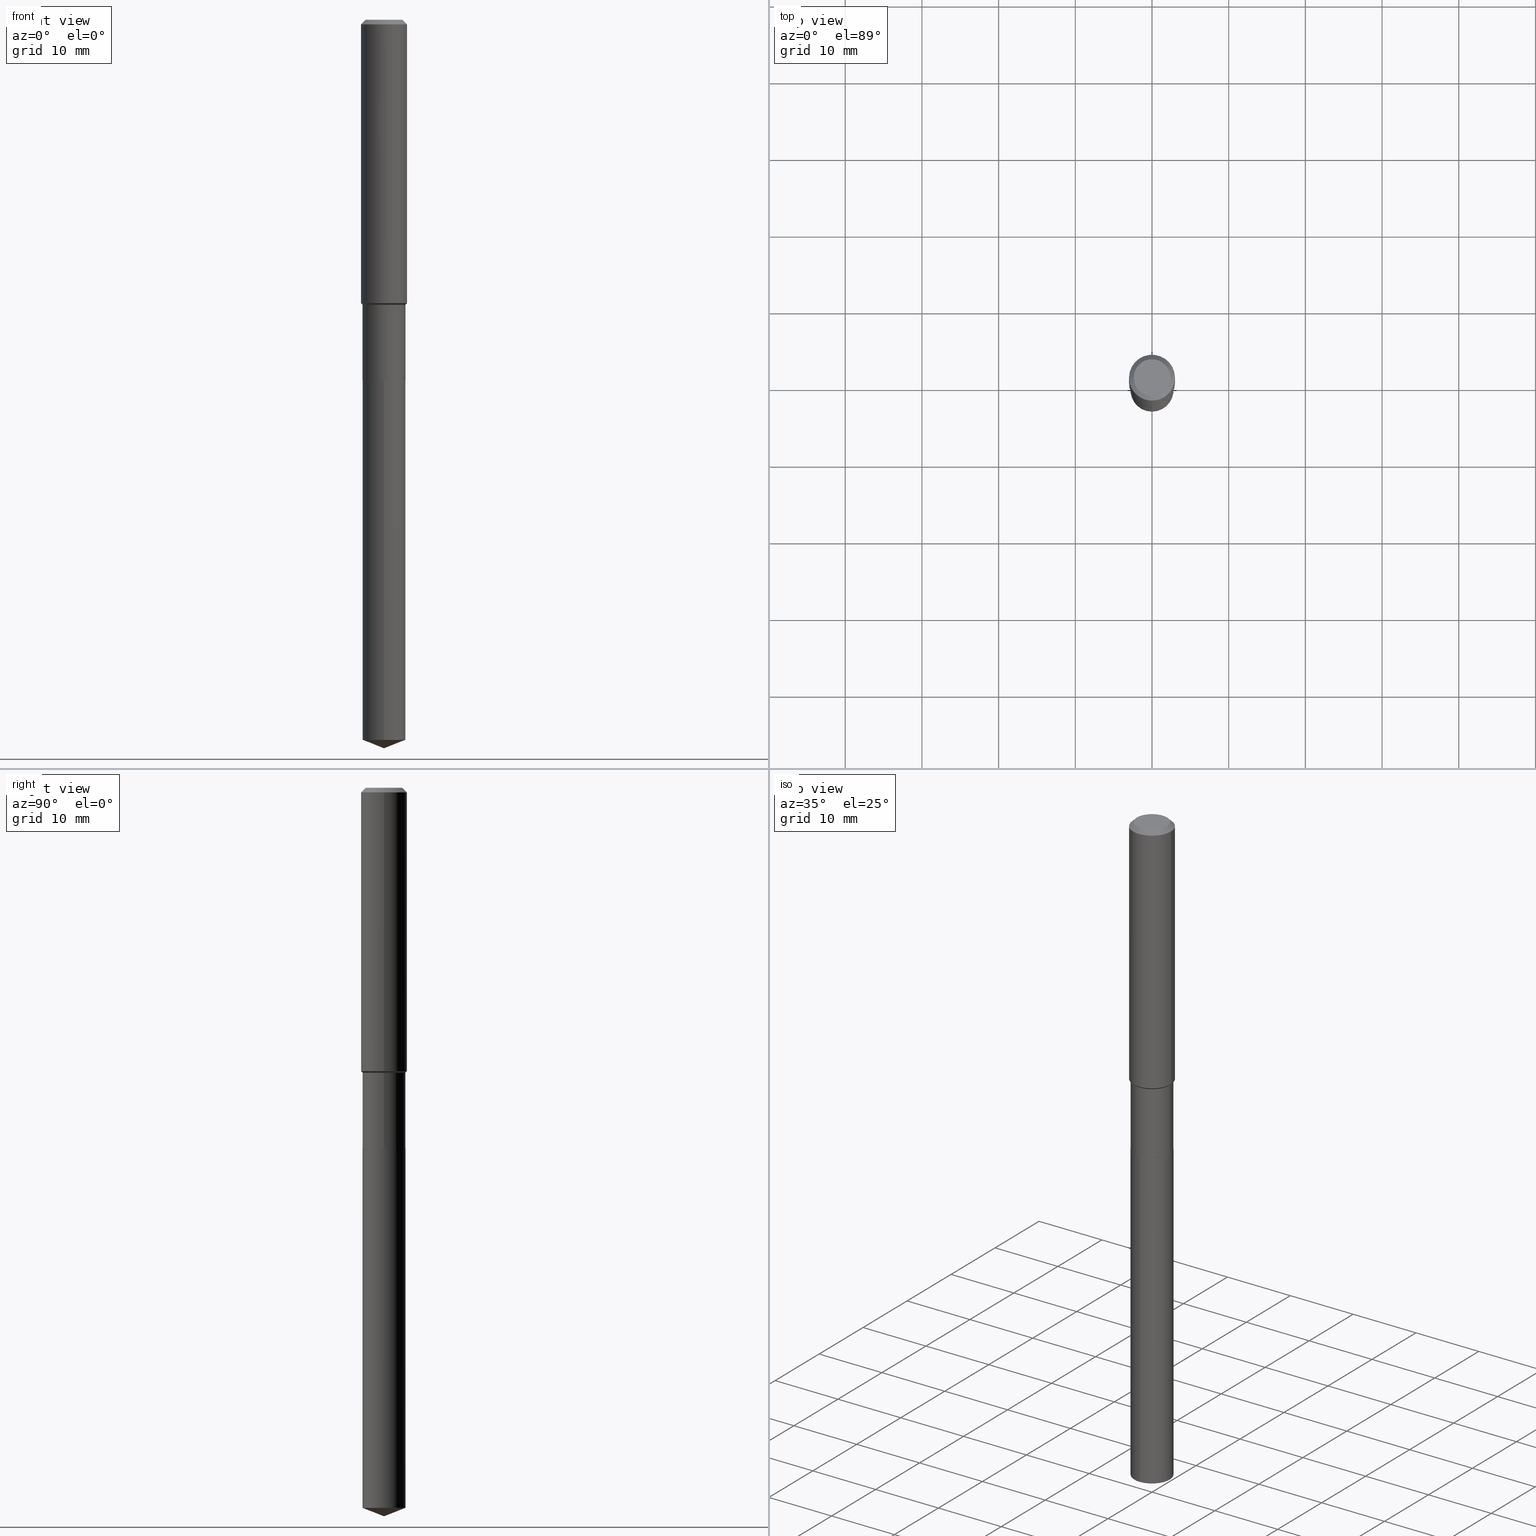
[diagram: canonical four-view strip — front | top / right | iso, engineering-drawing reading convention]
A machine part, canonical four-view strip (front | top / right | iso — engineering-drawing reading convention). The complete STEP part file that produces these views, byte-faithful:
ISO-10303-21;
HEADER;
FILE_DESCRIPTION (( 'STEP AP203' ),
    '1' );
FILE_NAME ('66632.STEP',
    '2024-04-25T02:28:00',
    ( '' ),
    ( '' ),
    'SwSTEP 2.0',
    'SolidWorks 2023',
    '' );
FILE_SCHEMA (( 'CONFIG_CONTROL_DESIGN' ));
ENDSEC;

DATA;
#1 = LINE ( 'NONE', #305, #469 ) ;
#2 = FACE_OUTER_BOUND ( 'NONE', #66, .T. ) ;
#3 = FACE_OUTER_BOUND ( 'NONE', #328, .T. ) ;
#4 = CIRCLE ( 'NONE', #447, 0.1097500000000000003 ) ;
#5 = CARTESIAN_POINT ( 'NONE',  ( 0.1102499999999999730, -7.698716352149106840E-16, 5.375984895315018203E-30 ) ) ;
#6 = AXIS2_PLACEMENT_3D ( 'NONE', #230, #418, #342 ) ;
#7 = DIRECTION ( 'NONE',  ( -2.445468806185136597E-29, 3.491481338843145583E-15, 1.000000000000000000 ) ) ;
#8 = LINE ( 'NONE', #461, #316 ) ;
#9 = CARTESIAN_POINT ( 'NONE',  ( 0.1097500000000000003, -7.227017223271426830E-15, -1.850400000000000489 ) ) ;
#10 = CARTESIAN_POINT ( 'NONE',  ( 4.523872744561885153E-29, -6.458891328725936072E-15, -1.849900000000000322 ) ) ;
#11 = CARTESIAN_POINT ( 'NONE',  ( 0.1181000000000001632, -5.905316962452350864E-15, -1.455149999999999721 ) ) ;
#12 = DIRECTION ( 'NONE',  ( 2.445468806185136597E-29, -3.491481338843145583E-15, -1.000000000000000000 ) ) ;
#13 = ORGANIZATION ( 'UNSPECIFIED', 'UNSPECIFIED', '' ) ;
#14 = CC_DESIGN_APPROVAL ( #440, ( #465 ) ) ;
#15 = EDGE_CURVE ( 'NONE', #366, #479, #346, .T. ) ;
#16 =( CONVERSION_BASED_UNIT ( 'INCH', #245 ) LENGTH_UNIT ( ) NAMED_UNIT ( #398 ) );
#17 = PERSON_AND_ORGANIZATION ( #439, #13 ) ;
#18 = CC_DESIGN_APPROVAL ( #399, ( #164 ) ) ;
#19 = DATE_AND_TIME ( #358, #356 ) ;
#20 = PRODUCT_DEFINITION_SHAPE ( 'NONE', 'NONE',  #164 ) ;
#21 = ORIENTED_EDGE ( 'NONE', *, *, #173, .T. ) ;
#22 = AXIS2_PLACEMENT_3D ( 'NONE', #26, #111, #171 ) ;
#23 = PERSON_AND_ORGANIZATION ( #439, #13 ) ;
#24 = AXIS2_PLACEMENT_3D ( 'NONE', #213, #62, #218 ) ;
#25 = EDGE_CURVE ( 'NONE', #175, #282, #267, .T. ) ;
#26 = CARTESIAN_POINT ( 'NONE',  ( 0.000000000000000000, 0.000000000000000000, 0.000000000000000000 ) ) ;
#27 = ORIENTED_EDGE ( 'NONE', *, *, #425, .F. ) ;
#28 = DIRECTION ( 'NONE',  ( -6.982962677686266711E-15, -1.000000000000000000, 2.477866660919966807E-15 ) ) ;
#29 = CC_DESIGN_PERSON_AND_ORGANIZATION_ASSIGNMENT ( #125, #272, ( #465 ) ) ;
#30 = CARTESIAN_POINT ( 'NONE',  ( -0.1180999999999999966, -1.742397958787859255E-15, -0.02362000000000014088 ) ) ;
#31 = VERTEX_POINT ( 'NONE', #120 ) ;
#32 = DIRECTION ( 'NONE',  ( -1.000000000000000000, 6.982962677686265922E-15, -4.876176775795935793E-29 ) ) ;
#33 = ORIENTED_EDGE ( 'NONE', *, *, #79, .T. ) ;
#34 = ADVANCED_BREP_SHAPE_REPRESENTATION ( '66632', ( #162, #326, #291 ), #478 ) ;
#35 = CIRCLE ( 'NONE', #487, 0.1102500000000000008 ) ;
#36 = APPROVAL_PERSON_ORGANIZATION ( #17, #440, #49 ) ;
#37 = CARTESIAN_POINT ( 'NONE',  ( -0.09447999999999998066, 7.009847083995354710E-16, -1.928573779297727792E-17 ) ) ;
#38 = ORIENTED_EDGE ( 'NONE', *, *, #263, .T. ) ;
#39 = CARTESIAN_POINT ( 'NONE',  ( 9.146586312602250272E-29, -1.305877565957271148E-14, -3.740200000000000191 ) ) ;
#40 = LINE ( 'NONE', #9, #195 ) ;
#41 = DIRECTION ( 'NONE',  ( -2.445480539169629745E-29, 3.491464536541551464E-15, 1.000000000000000000 ) ) ;
#42 = CARTESIAN_POINT ( 'NONE',  ( 4.716267017698007905E-46, -6.733579360998555036E-32, -1.928573779297252010E-17 ) ) ;
#43 = VECTOR ( 'NONE', #460, 39.37007874015748854 ) ;
#44 = FACE_OUTER_BOUND ( 'NONE', #219, .T. ) ;
#45 = CARTESIAN_POINT ( 'NONE',  ( 0.000000000000000000, 0.000000000000000000, 0.000000000000000000 ) ) ;
#46 = DIRECTION ( 'NONE',  ( 1.000000000000000000, -6.982962677686262766E-15, 0.000000000000000000 ) ) ;
#47 = DIRECTION ( 'NONE',  ( -2.445468806185136597E-29, 3.491481338843145583E-15, 1.000000000000000000 ) ) ;
#48 = CARTESIAN_POINT ( 'NONE',  ( -0.1180999999999999966, 7.422191030112725094E-16, -0.02362000000000014088 ) ) ;
#49 = APPROVAL_ROLE ( '' ) ;
#50 = CARTESIAN_POINT ( 'NONE',  ( 9.040360732535120479E-29, -1.290717722925754200E-14, -3.696771370063453688 ) ) ;
#51 = CIRCLE ( 'NONE', #279, 0.1097500000000000003 ) ;
#52 = LOCAL_TIME ( 22, 28, 0.000000000000000000, #392 ) ;
#53 = LOCAL_TIME ( 22, 28, 0.000000000000000000, #387 ) ;
#54 = APPROVAL_DATE_TIME ( #470, #440 ) ;
#55 = ORIENTED_EDGE ( 'NONE', *, *, #395, .F. ) ;
#56 = CC_DESIGN_PERSON_AND_ORGANIZATION_ASSIGNMENT ( #242, #91, ( #164 ) ) ;
#57 = AXIS2_PLACEMENT_3D ( 'NONE', #77, #463, #421 ) ;
#58 = ORIENTED_EDGE ( 'NONE', *, *, #311, .T. ) ;
#59 = CC_DESIGN_APPROVAL ( #64, ( #82 ) ) ;
#60 = ORIENTED_EDGE ( 'NONE', *, *, #431, .F. ) ;
#61 = DATE_AND_TIME ( #131, #233 ) ;
#62 = DIRECTION ( 'NONE',  ( -2.445468806185136597E-29, 3.491481338843145583E-15, 1.000000000000000000 ) ) ;
#63 = ORIENTED_EDGE ( 'NONE', *, *, #147, .T. ) ;
#64 = APPROVAL ( #320, 'UNSPECIFIED' ) ;
#65 = DIRECTION ( 'NONE',  ( -2.445468806185136597E-29, 3.491481338843145583E-15, 1.000000000000000000 ) ) ;
#66 = EDGE_LOOP ( 'NONE', ( #199, #244 ) ) ;
#67 = DIRECTION ( 'NONE',  ( 1.000000000000000000, 0.000000000000000000, 0.000000000000000000 ) ) ;
#68 = CARTESIAN_POINT ( 'NONE',  ( 2.358133508849003952E-46, -3.366789680499277518E-32, -9.642868896486260050E-18 ) ) ;
#69 = ORIENTED_EDGE ( 'NONE', *, *, #234, .T. ) ;
#70 = EDGE_CURVE ( 'NONE', #142, #479, #177, .T. ) ;
#71 = FACE_OUTER_BOUND ( 'NONE', #394, .T. ) ;
#72 = ORIENTED_EDGE ( 'NONE', *, *, #311, .F. ) ;
#73 = AXIS2_PLACEMENT_3D ( 'NONE', #451, #414, #293 ) ;
#74 = AXIS2_PLACEMENT_3D ( 'NONE', #416, #80, #46 ) ;
#75 = DIRECTION ( 'NONE',  ( -2.445468806185136877E-29, 3.491481338843145188E-15, 1.000000000000000000 ) ) ;
#76 = CARTESIAN_POINT ( 'NONE',  ( 5.776197320209327532E-31, -8.246878922347559293E-17, -0.02362000000000014088 ) ) ;
#77 = CARTESIAN_POINT ( 'NONE',  ( -8.713219678274335127E-28, 1.244004269715567405E-13, 35.62987874015747991 ) ) ;
#78 = DIRECTION ( 'NONE',  ( 0.7071067811864267805, -2.468850131080992517E-15, 0.7071067811866682540 ) ) ;
#79 = EDGE_CURVE ( 'NONE', #31, #292, #299, .T. ) ;
#80 = DIRECTION ( 'NONE',  ( -2.445468806185136597E-29, 3.491481338843145583E-15, 1.000000000000000000 ) ) ;
#81 = DIRECTION ( 'NONE',  ( -2.445468806185136597E-29, 3.491481338843145583E-15, 1.000000000000000000 ) ) ;
#82 = PRODUCT_DEFINITION_FORMATION_WITH_SPECIFIED_SOURCE ( 'ANY', '', #95, .NOT_KNOWN. ) ;
#83 = DIRECTION ( 'NONE',  ( -6.982962677686266711E-15, -1.000000000000000000, 2.477866660919966807E-15 ) ) ;
#84 = DIRECTION ( 'NONE',  ( -6.497071151882131669E-15, -0.9304175679820261280, 0.3665012267242931387 ) ) ;
#85 = DIRECTION ( 'NONE',  ( -2.445468806185136597E-29, 3.491481338843145583E-15, 1.000000000000000000 ) ) ;
#86 = DIRECTION ( 'NONE',  ( 2.445480539169629464E-29, -3.491464536541551464E-15, -1.000000000000000000 ) ) ;
#87 = ORIENTED_EDGE ( 'NONE', *, *, #238, .F. ) ;
#88 = APPROVAL_STATUS ( 'not_yet_approved' ) ;
#89 = AXIS2_PLACEMENT_3D ( 'NONE', #384, #378, #303 ) ;
#90 = EDGE_LOOP ( 'NONE', ( #485, #369 ) ) ;
#91 = PERSON_AND_ORGANIZATION_ROLE ( 'creator' ) ;
#92 = CC_DESIGN_PERSON_AND_ORGANIZATION_ASSIGNMENT ( #97, #236, ( #95 ) ) ;
#93 = EDGE_LOOP ( 'NONE', ( #468, #200, #168, #211 ) ) ;
#94 = VECTOR ( 'NONE', #222, 39.37007874015748143 ) ;
#95 = PRODUCT ( '66632', '66632', '', ( #160 ) ) ;
#96 = ORIENTED_EDGE ( 'NONE', *, *, #173, .F. ) ;
#97 = PERSON_AND_ORGANIZATION ( #439, #13 ) ;
#98 = LINE ( 'NONE', #253, #472 ) ;
#99 = ORIENTED_EDGE ( 'NONE', *, *, #133, .F. ) ;
#100 = DIRECTION ( 'NONE',  ( -2.445468806185136597E-29, 3.491481338843145583E-15, 1.000000000000000000 ) ) ;
#101 = ADVANCED_FACE ( 'NONE', ( #221 ), #298, .T. ) ;
#102 = CIRCLE ( 'NONE', #210, 0.1102500000000000008 ) ;
#103 = ORIENTED_EDGE ( 'NONE', *, *, #263, .F. ) ;
#104 = CIRCLE ( 'NONE', #422, 0.09447999999999998066 ) ;
#105 = VECTOR ( 'NONE', #149, 39.37007874015748143 ) ;
#106 = CARTESIAN_POINT ( 'NONE',  ( 0.1180999999999999966, -9.071566814582237199E-16, -0.02362000000000014088 ) ) ;
#107 = VERTEX_POINT ( 'NONE', #192 ) ;
#108 = EDGE_CURVE ( 'NONE', #107, #205, #40, .T. ) ;
#109 = CARTESIAN_POINT ( 'NONE',  ( 0.1102500000000000008, -7.228762963940847545E-15, -1.849900000000000322 ) ) ;
#110 = ORIENTED_EDGE ( 'NONE', *, *, #340, .F. ) ;
#111 = DIRECTION ( 'NONE',  ( -2.445468806185136597E-29, 3.491481338843145583E-15, 1.000000000000000000 ) ) ;
#112 = CARTESIAN_POINT ( 'NONE',  ( 9.146542891173238393E-29, -1.305883784153045268E-14, -3.740200000000000191 ) ) ;
#113 = EDGE_CURVE ( 'NONE', #254, #207, #128, .T. ) ;
#114 = FACE_OUTER_BOUND ( 'NONE', #400, .T. ) ;
#115 = CARTESIAN_POINT ( 'NONE',  ( 4.525095478964977954E-29, -6.460637069395358365E-15, -1.850400000000000489 ) ) ;
#116 = CARTESIAN_POINT ( 'NONE',  ( 4.525095478964977394E-29, -6.460637069395357576E-15, -1.850400000000000267 ) ) ;
#117 = DIRECTION ( 'NONE',  ( -2.445480539169630025E-29, 3.491464536541551464E-15, 1.000000000000000000 ) ) ;
#118 = PRODUCT_RELATED_PRODUCT_CATEGORY ( 'detail', '', ( #95 ) ) ;
#119 = DIRECTION ( 'NONE',  ( -2.445468806185136877E-29, 3.491481338843145188E-15, 1.000000000000000000 ) ) ;
#120 = CARTESIAN_POINT ( 'NONE',  ( 7.833733661756007850E-16, 0.1102499999999870806, -3.696771370063454132 ) ) ;
#121 = APPROVAL_STATUS ( 'not_yet_approved' ) ;
#122 = PLANE ( 'NONE',  #6 ) ;
#123 = DIRECTION ( 'NONE',  ( -2.445468806185136597E-29, 3.491481338843145583E-15, 1.000000000000000000 ) ) ;
#124 = PERSON_AND_ORGANIZATION_ROLE ( 'creator' ) ;
#125 = PERSON_AND_ORGANIZATION ( #439, #13 ) ;
#126 = ORIENTED_EDGE ( 'NONE', *, *, #318, .T. ) ;
#127 = ORIENTED_EDGE ( 'NONE', *, *, #133, .T. ) ;
#128 = CIRCLE ( 'NONE', #413, 0.09447999999999998066 ) ;
#129 = VECTOR ( 'NONE', #336, 39.37007874015748143 ) ;
#130 = ORIENTED_EDGE ( 'NONE', *, *, #113, .F. ) ;
#131 = CALENDAR_DATE ( 2024, 24, 4 ) ;
#132 = EDGE_LOOP ( 'NONE', ( #286, #232, #237, #103 ) ) ;
#133 = EDGE_CURVE ( 'NONE', #294, #31, #348, .T. ) ;
#134 = LINE ( 'NONE', #255, #380 ) ;
#135 = APPLICATION_PROTOCOL_DEFINITION ( 'international standard', 'config_control_design', 1994, #313 ) ;
#136 = CARTESIAN_POINT ( 'NONE',  ( -8.713219678274335127E-28, 1.244004269715567405E-13, 35.62987874015747991 ) ) ;
#137 = EDGE_CURVE ( 'NONE', #31, #217, #102, .T. ) ;
#138 = DESIGN_CONTEXT ( 'detailed design', #202, 'design' ) ;
#139 = ORIENTED_EDGE ( 'NONE', *, *, #395, .T. ) ;
#140 = AXIS2_PLACEMENT_3D ( 'NONE', #467, #325, #28 ) ;
#141 = CARTESIAN_POINT ( 'NONE',  ( -0.1102499999999999869, -5.000090897551218961E-15, -1.849900000000000322 ) ) ;
#142 = VERTEX_POINT ( 'NONE', #11 ) ;
#143 = DIRECTION ( 'NONE',  ( 2.438088387897960049E-29, -3.491481338843145188E-15, -1.000000000000000000 ) ) ;
#144 = DIRECTION ( 'NONE',  ( 1.000000000000000000, -6.982962677686267499E-15, 4.875432709231658792E-29 ) ) ;
#145 = DIRECTION ( 'NONE',  ( -2.445480539169629745E-29, 3.491464536541551464E-15, 1.000000000000000000 ) ) ;
#146 = DIRECTION ( 'NONE',  ( 0.7071067811865459074, -7.319954787623249734E-15, -0.7071067811865491270 ) ) ;
#147 = EDGE_CURVE ( 'NONE', #294, #217, #423, .T. ) ;
#148 = AXIS2_PLACEMENT_3D ( 'NONE', #329, #243, #295 ) ;
#149 = DIRECTION ( 'NONE',  ( -0.7071067811865459074, 2.468850131082240100E-15, -0.7071067811865491270 ) ) ;
#150 = CC_DESIGN_DATE_AND_TIME_ASSIGNMENT ( #434, #270, ( #465 ) ) ;
#151 = DIRECTION ( 'NONE',  ( -2.445468806185136597E-29, 3.491481338843145583E-15, 1.000000000000000000 ) ) ;
#152 = EDGE_CURVE ( 'NONE', #296, #107, #4, .T. ) ;
#153 = FACE_OUTER_BOUND ( 'NONE', #406, .T. ) ;
#154 = DIRECTION ( 'NONE',  ( -2.445480539169629745E-29, 3.491464536541551464E-15, 1.000000000000000000 ) ) ;
#155 = DIRECTION ( 'NONE',  ( -2.445468806185136597E-29, 3.491481338843145583E-15, 1.000000000000000000 ) ) ;
#156 = ADVANCED_FACE ( 'NONE', ( #3 ), #257, .T. ) ;
#157 = AXIS2_PLACEMENT_3D ( 'NONE', #269, #304, #353 ) ;
#158 = CARTESIAN_POINT ( 'NONE',  ( -7.698716352148656203E-16, -0.1102500000000064539, -1.850400000000000045 ) ) ;
#159 = EDGE_CURVE ( 'NONE', #254, #282, #1, .T. ) ;
#160 = MECHANICAL_CONTEXT ( 'NONE', #313, 'mechanical' ) ;
#161 = UNCERTAINTY_MEASURE_WITH_UNIT (LENGTH_MEASURE( 1.000000000000000082E-05 ), #16, 'distance_accuracy_value', 'NONE');
#162 = MANIFOLD_SOLID_BREP ( 'Body-Move/Copy2[1]', #486 ) ;
#163 = AXIS2_PLACEMENT_3D ( 'NONE', #45, #7, #264 ) ;
#164 = PRODUCT_DEFINITION ( 'UNKNOWN', '', #82, #138 ) ;
#165 = ORIENTED_EDGE ( 'NONE', *, *, #25, .T. ) ;
#166 = DATE_TIME_ROLE ( 'creation_date' ) ;
#167 = AXIS2_PLACEMENT_3D ( 'NONE', #350, #12, #383 ) ;
#168 = ORIENTED_EDGE ( 'NONE', *, *, #407, .F. ) ;
#169 = ADVANCED_FACE ( 'NONE', ( #185 ), #343, .T. ) ;
#170 = APPROVAL_ROLE ( '' ) ;
#171 = DIRECTION ( 'NONE',  ( 1.000000000000000000, -6.982962677686266711E-15, 4.876176775795935793E-29 ) ) ;
#172 = ORIENTED_EDGE ( 'NONE', *, *, #385, .F. ) ;
#173 = EDGE_CURVE ( 'NONE', #107, #296, #51, .T. ) ;
#174 = FACE_OUTER_BOUND ( 'NONE', #435, .T. ) ;
#175 = VERTEX_POINT ( 'NONE', #30 ) ;
#176 = CARTESIAN_POINT ( 'NONE',  ( 5.776197320209327532E-31, -8.246878922347559293E-17, -0.02362000000000014088 ) ) ;
#177 = CIRCLE ( 'NONE', #89, 0.1181000000000001632 ) ;
#178 = ORIENTED_EDGE ( 'NONE', *, *, #420, .T. ) ;
#179 = CIRCLE ( 'NONE', #277, 0.1102500000000000008 ) ;
#180 = PLANE ( 'NONE',  #322 ) ;
#181 = VERTEX_POINT ( 'NONE', #141 ) ;
#182 = CARTESIAN_POINT ( 'NONE',  ( -0.1097500000000000003, -5.678167189724537898E-15, -1.850400000000000489 ) ) ;
#183 = DIRECTION ( 'NONE',  ( -0.7071067811865435759, 7.493145998870339961E-15, 0.7071067811865513475 ) ) ;
#184 = DIRECTION ( 'NONE',  ( -2.445480539169629745E-29, 3.491464536541551464E-15, 1.000000000000000000 ) ) ;
#185 = FACE_OUTER_BOUND ( 'NONE', #93, .T. ) ;
#186 = AXIS2_PLACEMENT_3D ( 'NONE', #338, #100, #290 ) ;
#187 = AXIS2_PLACEMENT_3D ( 'NONE', #116, #86, #262 ) ;
#188 = CARTESIAN_POINT ( 'NONE',  ( 4.716267017698007905E-46, -6.733579360998555036E-32, -1.928573779297252010E-17 ) ) ;
#189 = DIRECTION ( 'NONE',  ( 1.000000000000000000, -6.982962677686266711E-15, 4.876176775795936353E-29 ) ) ;
#190 = ADVANCED_FACE ( 'NONE', ( #174 ), #240, .T. ) ;
#191 = CARTESIAN_POINT ( 'NONE',  ( -0.1102499999999999591, -5.000090897551218961E-15, -1.462999999999999856 ) ) ;
#192 = CARTESIAN_POINT ( 'NONE',  ( 0.1097500000000000003, -7.227017223271426830E-15, -1.850400000000000489 ) ) ;
#193 = FACE_OUTER_BOUND ( 'NONE', #90, .T. ) ;
#194 = SHAPE_DEFINITION_REPRESENTATION ( #20, #34 ) ;
#195 = VECTOR ( 'NONE', #78, 39.37007874015748143 ) ;
#196 = CONICAL_SURFACE ( 'NONE', #57, 99.94676754584121170, 1.195550537616123732 ) ;
#197 = DIRECTION ( 'NONE',  ( -6.982962677686266711E-15, -1.000000000000000000, 4.955733321839933614E-15 ) ) ;
#198 = EDGE_CURVE ( 'NONE', #479, #142, #276, .T. ) ;
#199 = ORIENTED_EDGE ( 'NONE', *, *, #431, .T. ) ;
#200 = ORIENTED_EDGE ( 'NONE', *, *, #238, .T. ) ;
#201 = ORIENTED_EDGE ( 'NONE', *, *, #137, .F. ) ;
#202 = APPLICATION_CONTEXT ( 'configuration controlled 3d designs of mechanical parts and assemblies' ) ;
#203 = CIRCLE ( 'NONE', #344, 0.1102500000000000008 ) ;
#204 = VERTEX_POINT ( 'NONE', #444 ) ;
#205 = VERTEX_POINT ( 'NONE', #109 ) ;
#206 = COORDINATED_UNIVERSAL_TIME_OFFSET ( 5, 0, .BEHIND. ) ;
#207 = VERTEX_POINT ( 'NONE', #37 ) ;
#208 = APPROVAL_ROLE ( '' ) ;
#209 = DIRECTION ( 'NONE',  ( -6.982962677686266711E-15, -1.000000000000000000, 3.498627837349960835E-15 ) ) ;
#210 = AXIS2_PLACEMENT_3D ( 'NONE', #458, #154, #266 ) ;
#211 = ORIENTED_EDGE ( 'NONE', *, *, #432, .F. ) ;
#212 = ADVANCED_FACE ( 'NONE', ( #2 ), #180, .F. ) ;
#213 = CARTESIAN_POINT ( 'NONE',  ( 4.525095478964977954E-29, -6.460637069395358365E-15, -1.850400000000000489 ) ) ;
#214 = ORIENTED_EDGE ( 'NONE', *, *, #393, .F. ) ;
#215 =( LENGTH_UNIT ( ) NAMED_UNIT ( * ) SI_UNIT ( $, .METRE. ) );
#216 = FACE_OUTER_BOUND ( 'NONE', #410, .T. ) ;
#217 = VERTEX_POINT ( 'NONE', #371 ) ;
#218 = DIRECTION ( 'NONE',  ( 1.000000000000000000, -6.982962677686264344E-15, 0.000000000000000000 ) ) ;
#219 = EDGE_LOOP ( 'NONE', ( #96, #489 ) ) ;
#220 = CARTESIAN_POINT ( 'NONE',  ( 4.523872744561885153E-29, -6.458891328725936072E-15, -1.849900000000000322 ) ) ;
#221 = FACE_OUTER_BOUND ( 'NONE', #132, .T. ) ;
#222 = DIRECTION ( 'NONE',  ( -2.445480539169630025E-29, 3.491464536541551464E-15, 1.000000000000000000 ) ) ;
#223 = CARTESIAN_POINT ( 'NONE',  ( 0.000000000000000000, 0.000000000000000000, 0.000000000000000000 ) ) ;
#224 = LINE ( 'NONE', #48, #105 ) ;
#225 = DIRECTION ( 'NONE',  ( 1.000000000000000000, -6.982962677686264344E-15, 0.000000000000000000 ) ) ;
#226 = DIRECTION ( 'NONE',  ( 1.000000000000000000, -6.982962677686266711E-15, 4.876176775795935793E-29 ) ) ;
#227 = DIRECTION ( 'NONE',  ( 1.000000000000000000, -6.982962677686264344E-15, 0.000000000000000000 ) ) ;
#228 = CARTESIAN_POINT ( 'NONE',  ( -0.1181000000000001632, -4.241478099284922826E-15, -1.455149999999999721 ) ) ;
#229 = PERSON_AND_ORGANIZATION_ROLE ( 'design_supplier' ) ;
#230 = CARTESIAN_POINT ( 'NONE',  ( 1.308789617312019754E-29, -1.106657012404351745E-14, -1.850400000000000489 ) ) ;
#231 = ADVANCED_FACE ( 'NONE', ( #216 ), #368, .T. ) ;
#232 = ORIENTED_EDGE ( 'NONE', *, *, #152, .T. ) ;
#233 = LOCAL_TIME ( 22, 28, 0.000000000000000000, #477 ) ;
#234 = EDGE_CURVE ( 'NONE', #366, #204, #390, .T. ) ;
#235 = CALENDAR_DATE ( 2024, 24, 4 ) ;
#236 = PERSON_AND_ORGANIZATION_ROLE ( 'design_owner' ) ;
#237 = ORIENTED_EDGE ( 'NONE', *, *, #108, .T. ) ;
#238 = EDGE_CURVE ( 'NONE', #479, #175, #134, .T. ) ;
#239 = ADVANCED_FACE ( 'NONE', ( #331 ), #404, .T. ) ;
#240 = CONICAL_SURFACE ( 'NONE', #361, 0.1180999999999999966, 0.7853981633974460586 ) ;
#241 = ORIENTED_EDGE ( 'NONE', *, *, #425, .T. ) ;
#242 = PERSON_AND_ORGANIZATION ( #439, #13 ) ;
#243 = DIRECTION ( 'NONE',  ( -2.445480539169629745E-29, 3.491464536541551464E-15, 1.000000000000000000 ) ) ;
#244 = ORIENTED_EDGE ( 'NONE', *, *, #113, .T. ) ;
#245 = LENGTH_MEASURE_WITH_UNIT ( LENGTH_MEASURE( 0.02539999999999999897 ), #215 );
#246 = VECTOR ( 'NONE', #183, 39.37007874015748854 ) ;
#247 = CARTESIAN_POINT ( 'NONE',  ( -0.1097500000000000003, -5.680816416898649099E-15, -1.850400000000000489 ) ) ;
#248 = CIRCLE ( 'NONE', #157, 0.1180999999999999966 ) ;
#249 = ORIENTED_EDGE ( 'NONE', *, *, #159, .T. ) ;
#250 = DIRECTION ( 'NONE',  ( 0.000000000000000000, 0.000000000000000000, 1.000000000000000000 ) ) ;
#251 = LINE ( 'NONE', #362, #129 ) ;
#252 = EDGE_LOOP ( 'NONE', ( #359, #69, #450, #441 ) ) ;
#253 = CARTESIAN_POINT ( 'NONE',  ( 0.1102499999999999591, -5.877908833942432075E-15, -1.462999999999999856 ) ) ;
#254 = VERTEX_POINT ( 'NONE', #409 ) ;
#255 = CARTESIAN_POINT ( 'NONE',  ( -0.1181000000000000799, 8.391509709326788873E-16, -5.809262341591047988E-30 ) ) ;
#256 = AXIS2_PLACEMENT_3D ( 'NONE', #115, #339, #376 ) ;
#257 = CYLINDRICAL_SURFACE ( 'NONE', #476, 0.1181000000000000799 ) ;
#258 = CONICAL_SURFACE ( 'NONE', #24, 0.1097500000000000003, 0.7853981633972775267 ) ;
#259 = ADVANCED_FACE ( 'NONE', ( #449 ), #405, .T. ) ;
#260 = CARTESIAN_POINT ( 'NONE',  ( -7.698716352148656203E-16, -0.1102500000000064539, -1.850400000000000045 ) ) ;
#261 = CARTESIAN_POINT ( 'NONE',  ( 9.146586693356927948E-29, -1.305877565957271148E-14, -3.740200000000000191 ) ) ;
#262 = DIRECTION ( 'NONE',  ( 6.982962677686265922E-15, 1.000000000000000000, -3.491464536541551464E-15 ) ) ;
#263 = EDGE_CURVE ( 'NONE', #181, #205, #179, .T. ) ;
#264 = DIRECTION ( 'NONE',  ( 1.000000000000000000, -6.982962677686266711E-15, 4.876176775795936353E-29 ) ) ;
#265 = FACE_OUTER_BOUND ( 'NONE', #482, .T. ) ;
#266 = DIRECTION ( 'NONE',  ( -6.982962677686266711E-15, -1.000000000000000000, 4.955733321839933614E-15 ) ) ;
#267 = CIRCLE ( 'NONE', #403, 0.1180999999999999966 ) ;
#268 = VECTOR ( 'NONE', #297, 39.37007874015748143 ) ;
#269 = CARTESIAN_POINT ( 'NONE',  ( 5.776197320209327532E-31, -8.246878922347559293E-17, -0.02362000000000014088 ) ) ;
#270 = DATE_TIME_ROLE ( 'classification_date' ) ;
#271 = DIRECTION ( 'NONE',  ( -2.445468806185136597E-29, 3.491481338843145583E-15, 1.000000000000000000 ) ) ;
#272 = PERSON_AND_ORGANIZATION_ROLE ( 'classification_officer' ) ;
#273 = ORIENTED_EDGE ( 'NONE', *, *, #340, .T. ) ;
#274 = CYLINDRICAL_SURFACE ( 'NONE', #140, 0.1102500000000000008 ) ;
#275 = ORIENTED_EDGE ( 'NONE', *, *, #432, .T. ) ;
#276 = CIRCLE ( 'NONE', #73, 0.1181000000000001632 ) ;
#277 = AXIS2_PLACEMENT_3D ( 'NONE', #220, #374, #285 ) ;
#278 = ORIENTED_EDGE ( 'NONE', *, *, #420, .F. ) ;
#279 = AXIS2_PLACEMENT_3D ( 'NONE', #419, #81, #225 ) ;
#280 = APPROVAL_PERSON_ORGANIZATION ( #283, #399, #170 ) ;
#281 = CC_DESIGN_SECURITY_CLASSIFICATION ( #465, ( #82 ) ) ;
#282 = VERTEX_POINT ( 'NONE', #106 ) ;
#283 = PERSON_AND_ORGANIZATION ( #439, #13 ) ;
#284 = EDGE_CURVE ( 'NONE', #204, #142, #98, .T. ) ;
#285 = DIRECTION ( 'NONE',  ( 1.000000000000000000, -6.982962677686269077E-15, 0.000000000000000000 ) ) ;
#286 = ORIENTED_EDGE ( 'NONE', *, *, #318, .F. ) ;
#287 = CARTESIAN_POINT ( 'NONE',  ( 3.577720863448854962E-29, -5.108037198727522179E-15, -1.462999999999999856 ) ) ;
#288 = ORIENTED_EDGE ( 'NONE', *, *, #393, .T. ) ;
#289 =( NAMED_UNIT ( * ) PLANE_ANGLE_UNIT ( ) SI_UNIT ( $, .RADIAN. ) );
#290 = DIRECTION ( 'NONE',  ( 1.000000000000000000, -6.982962677686262766E-15, 0.000000000000000000 ) ) ;
#291 = AXIS2_PLACEMENT_3D ( 'NONE', #446, #250, #67 ) ;
#292 = VERTEX_POINT ( 'NONE', #411 ) ;
#293 = DIRECTION ( 'NONE',  ( 1.000000000000000000, -6.982962677686263555E-15, 0.000000000000000000 ) ) ;
#294 = VERTEX_POINT ( 'NONE', #39 ) ;
#295 = DIRECTION ( 'NONE',  ( -6.982962677686266711E-15, -1.000000000000000000, 2.477866660919966807E-15 ) ) ;
#296 = VERTEX_POINT ( 'NONE', #182 ) ;
#297 = DIRECTION ( 'NONE',  ( -2.445468806185136877E-29, 3.491481338843145188E-15, 1.000000000000000000 ) ) ;
#298 = CONICAL_SURFACE ( 'NONE', #256, 0.1097500000000000003, 0.7853981633972775267 ) ;
#299 = LINE ( 'NONE', #462, #351 ) ;
#300 = VECTOR ( 'NONE', #327, 39.37007874015748143 ) ;
#301 = ADVANCED_FACE ( 'NONE', ( #71 ), #258, .T. ) ;
#302 = FACE_OUTER_BOUND ( 'NONE', #355, .T. ) ;
#303 = DIRECTION ( 'NONE',  ( 1.000000000000000000, -6.982962677686263555E-15, 0.000000000000000000 ) ) ;
#304 = DIRECTION ( 'NONE',  ( -2.445468806185136597E-29, 3.491481338843145583E-15, 1.000000000000000000 ) ) ;
#305 = CARTESIAN_POINT ( 'NONE',  ( 0.1180999999999999966, -8.926936027602933910E-16, -0.02362000000000014088 ) ) ;
#306 = DIRECTION ( 'NONE',  ( 1.000000000000000000, -6.982962677686262766E-15, 0.000000000000000000 ) ) ;
#307 = CIRCLE ( 'NONE', #333, 0.1102500000000000008 ) ;
#308 = LOCAL_TIME ( 22, 28, 0.000000000000000000, #424 ) ;
#309 = CYLINDRICAL_SURFACE ( 'NONE', #448, 0.1102499999999999730 ) ;
#310 = EDGE_LOOP ( 'NONE', ( #139, #33, #402, #214 ) ) ;
#311 = EDGE_CURVE ( 'NONE', #181, #366, #251, .T. ) ;
#312 = CALENDAR_DATE ( 2024, 24, 4 ) ;
#313 = APPLICATION_CONTEXT ( 'configuration controlled 3d designs of mechanical parts and assemblies' ) ;
#314 = PERSON_AND_ORGANIZATION ( #439, #13 ) ;
#315 = ORIENTED_EDGE ( 'NONE', *, *, #137, .T. ) ;
#316 = VECTOR ( 'NONE', #119, 39.37007874015748143 ) ;
#317 = CIRCLE ( 'NONE', #464, 0.1102500000000000008 ) ;
#318 = EDGE_CURVE ( 'NONE', #296, #181, #490, .T. ) ;
#319 = ORIENTED_EDGE ( 'NONE', *, *, #332, .F. ) ;
#320 = APPROVAL_STATUS ( 'not_yet_approved' ) ;
#321 = ADVANCED_FACE ( 'NONE', ( #481 ), #391, .T. ) ;
#322 = AXIS2_PLACEMENT_3D ( 'NONE', #68, #143, #32 ) ;
#323 = APPROVAL_PERSON_ORGANIZATION ( #401, #64, #208 ) ;
#324 = ORIENTED_EDGE ( 'NONE', *, *, #108, .F. ) ;
#325 = DIRECTION ( 'NONE',  ( -2.445480539169629745E-29, 3.491464536541551464E-15, 1.000000000000000000 ) ) ;
#326 = MANIFOLD_SOLID_BREP ( 'Body-Move/Copy2[2]', #370 ) ;
#327 = DIRECTION ( 'NONE',  ( -0.7071067811864267805, 7.493145998869918709E-15, 0.7071067811866682540 ) ) ;
#328 = EDGE_LOOP ( 'NONE', ( #87, #429, #275, #373 ) ) ;
#329 = CARTESIAN_POINT ( 'NONE',  ( 4.525095478964977394E-29, -6.460637069395357576E-15, -1.850400000000000267 ) ) ;
#330 = ORIENTED_EDGE ( 'NONE', *, *, #15, .T. ) ;
#331 = FACE_OUTER_BOUND ( 'NONE', #443, .T. ) ;
#332 = EDGE_CURVE ( 'NONE', #204, #366, #457, .T. ) ;
#333 = AXIS2_PLACEMENT_3D ( 'NONE', #459, #41, #388 ) ;
#334 = VERTEX_POINT ( 'NONE', #158 ) ;
#335 = CC_DESIGN_PERSON_AND_ORGANIZATION_ASSIGNMENT ( #23, #124, ( #82 ) ) ;
#336 = DIRECTION ( 'NONE',  ( -2.445468806185136877E-29, 3.491481338843145188E-15, 1.000000000000000000 ) ) ;
#337 = CARTESIAN_POINT ( 'NONE',  ( 4.525095478964977954E-29, -6.460637069395358365E-15, -1.850400000000000489 ) ) ;
#338 = CARTESIAN_POINT ( 'NONE',  ( 3.577720863448854962E-29, -5.108037198727522179E-15, -1.462999999999999856 ) ) ;
#339 = DIRECTION ( 'NONE',  ( -2.445468806185136597E-29, 3.491481338843145583E-15, 1.000000000000000000 ) ) ;
#340 = EDGE_CURVE ( 'NONE', #205, #181, #203, .T. ) ;
#341 = ADVANCED_FACE ( 'NONE', ( #114 ), #196, .T. ) ;
#342 = DIRECTION ( 'NONE',  ( 1.000000000000000000, -6.982962677686265922E-15, 4.876176775795935793E-29 ) ) ;
#343 = CYLINDRICAL_SURFACE ( 'NONE', #163, 0.1181000000000000799 ) ;
#344 = AXIS2_PLACEMENT_3D ( 'NONE', #10, #271, #466 ) ;
#345 = DIRECTION ( 'NONE',  ( 1.000000000000000000, -6.982962677686267499E-15, 4.875432709231658792E-29 ) ) ;
#346 = LINE ( 'NONE', #382, #246 ) ;
#347 = CARTESIAN_POINT ( 'NONE',  ( 3.577720863448854962E-29, -5.108037198727522179E-15, -1.462999999999999856 ) ) ;
#348 = LINE ( 'NONE', #261, #43 ) ;
#349 = CALENDAR_DATE ( 2024, 24, 4 ) ;
#350 = CARTESIAN_POINT ( 'NONE',  ( 5.776197320209327532E-31, -8.246878922347559293E-17, -0.02362000000000014088 ) ) ;
#351 = VECTOR ( 'NONE', #117, 39.37007874015748143 ) ;
#352 = CONICAL_SURFACE ( 'NONE', #167, 0.1180999999999999966, 0.7853981633974460586 ) ;
#353 = DIRECTION ( 'NONE',  ( 1.000000000000000000, -6.982962677686266711E-15, 0.000000000000000000 ) ) ;
#354 = DATE_AND_TIME ( #312, #52 ) ;
#355 = EDGE_LOOP ( 'NONE', ( #473, #60, #241, #165 ) ) ;
#356 = LOCAL_TIME ( 22, 28, 0.000000000000000000, #206 ) ;
#357 = ORIENTED_EDGE ( 'NONE', *, *, #234, .F. ) ;
#358 = CALENDAR_DATE ( 2024, 24, 4 ) ;
#359 = ORIENTED_EDGE ( 'NONE', *, *, #15, .F. ) ;
#360 = APPROVAL_DATE_TIME ( #61, #64 ) ;
#361 = AXIS2_PLACEMENT_3D ( 'NONE', #176, #453, #442 ) ;
#362 = CARTESIAN_POINT ( 'NONE',  ( -0.1102499999999999730, 7.833733661755102632E-16, -5.423125937006032068E-30 ) ) ;
#363 = ORIENTED_EDGE ( 'NONE', *, *, #70, .F. ) ;
#364 = EDGE_CURVE ( 'NONE', #334, #292, #35, .T. ) ;
#365 = DIRECTION ( 'NONE',  ( 1.000000000000000000, -6.982962677686262766E-15, 0.000000000000000000 ) ) ;
#366 = VERTEX_POINT ( 'NONE', #191 ) ;
#367 = ADVANCED_FACE ( 'NONE', ( #193 ), #428, .F. ) ;
#368 = CYLINDRICAL_SURFACE ( 'NONE', #22, 0.1102499999999999730 ) ;
#369 = ORIENTED_EDGE ( 'NONE', *, *, #385, .T. ) ;
#370 = CLOSED_SHELL ( 'NONE', ( #301, #190, #169, #474, #231, #389, #321, #156, #427, #212, #375, #101 ) ) ;
#371 = CARTESIAN_POINT ( 'NONE',  ( -7.698716352148202608E-16, -0.1102500000000128932, -3.696771370063453244 ) ) ;
#372 = CONICAL_SURFACE ( 'NONE', #381, 0.1102499999999999591, 0.7853981633974428389 ) ;
#373 = ORIENTED_EDGE ( 'NONE', *, *, #25, .F. ) ;
#374 = DIRECTION ( 'NONE',  ( -2.445468806185136597E-29, 3.491481338843145583E-15, 1.000000000000000000 ) ) ;
#375 = ADVANCED_FACE ( 'NONE', ( #44 ), #122, .F. ) ;
#376 = DIRECTION ( 'NONE',  ( 1.000000000000000000, -6.982962677686264344E-15, 0.000000000000000000 ) ) ;
#377 = CARTESIAN_POINT ( 'NONE',  ( 0.000000000000000000, 0.000000000000000000, 0.000000000000000000 ) ) ;
#378 = DIRECTION ( 'NONE',  ( -2.445468806185136597E-29, 3.491481338843145583E-15, 1.000000000000000000 ) ) ;
#379 = LINE ( 'NONE', #5, #268 ) ;
#380 = VECTOR ( 'NONE', #75, 39.37007874015748143 ) ;
#381 = AXIS2_PLACEMENT_3D ( 'NONE', #347, #155, #306 ) ;
#382 = CARTESIAN_POINT ( 'NONE',  ( -0.1102499999999999591, -4.324663832552012015E-15, -1.462999999999999856 ) ) ;
#383 = DIRECTION ( 'NONE',  ( -1.000000000000000000, 6.982962677686266711E-15, 0.000000000000000000 ) ) ;
#384 = CARTESIAN_POINT ( 'NONE',  ( 3.558523933320300557E-29, -5.080629070217601812E-15, -1.455149999999999721 ) ) ;
#385 = EDGE_CURVE ( 'NONE', #292, #334, #307, .T. ) ;
#386 = FACE_OUTER_BOUND ( 'NONE', #310, .T. ) ;
#387 = COORDINATED_UNIVERSAL_TIME_OFFSET ( 5, 0, .BEHIND. ) ;
#388 = DIRECTION ( 'NONE',  ( -6.982962677686266711E-15, -1.000000000000000000, 2.477866660919966807E-15 ) ) ;
#389 = ADVANCED_FACE ( 'NONE', ( #153 ), #309, .T. ) ;
#390 = CIRCLE ( 'NONE', #186, 0.1102499999999999591 ) ;
#391 = CONICAL_SURFACE ( 'NONE', #436, 0.1102499999999999591, 0.7853981633974428389 ) ;
#392 = COORDINATED_UNIVERSAL_TIME_OFFSET ( 5, 0, .BEHIND. ) ;
#393 = EDGE_CURVE ( 'NONE', #217, #334, #455, .T. ) ;
#394 = EDGE_LOOP ( 'NONE', ( #21, #126, #110, #324 ) ) ;
#395 = EDGE_CURVE ( 'NONE', #217, #31, #317, .T. ) ;
#396 = EDGE_LOOP ( 'NONE', ( #445, #315, #288, #172 ) ) ;
#397 = AXIS2_PLACEMENT_3D ( 'NONE', #136, #488, #209 ) ;
#398 = DIMENSIONAL_EXPONENTS ( 1.000000000000000000, 0.000000000000000000, 0.000000000000000000, 0.000000000000000000, 0.000000000000000000, 0.000000000000000000, 0.000000000000000000 ) ;
#399 = APPROVAL ( #88, 'UNSPECIFIED' ) ;
#400 = EDGE_LOOP ( 'NONE', ( #452, #127, #55 ) ) ;
#401 = PERSON_AND_ORGANIZATION ( #439, #13 ) ;
#402 = ORIENTED_EDGE ( 'NONE', *, *, #364, .F. ) ;
#403 = AXIS2_PLACEMENT_3D ( 'NONE', #76, #47, #415 ) ;
#404 = CONICAL_SURFACE ( 'NONE', #397, 99.94676754584121170, 1.195550537616123732 ) ;
#405 = CYLINDRICAL_SURFACE ( 'NONE', #148, 0.1102500000000000008 ) ;
#406 = EDGE_LOOP ( 'NONE', ( #72, #38, #178, #357 ) ) ;
#407 = EDGE_CURVE ( 'NONE', #282, #175, #248, .T. ) ;
#408 = CC_DESIGN_DATE_AND_TIME_ASSIGNMENT ( #19, #166, ( #164 ) ) ;
#409 = CARTESIAN_POINT ( 'NONE',  ( 0.09447999999999998066, -7.704367267948738690E-16, -1.928573779296752193E-17 ) ) ;
#410 = EDGE_LOOP ( 'NONE', ( #273, #58, #319, #278 ) ) ;
#411 = CARTESIAN_POINT ( 'NONE',  ( 7.833733661756010808E-16, 0.1102499999999935476, -1.850400000000000489 ) ) ;
#412 = ORIENTED_EDGE ( 'NONE', *, *, #332, .T. ) ;
#413 = AXIS2_PLACEMENT_3D ( 'NONE', #42, #454, #144 ) ;
#414 = DIRECTION ( 'NONE',  ( -2.445468806185136597E-29, 3.491481338843145583E-15, 1.000000000000000000 ) ) ;
#415 = DIRECTION ( 'NONE',  ( 1.000000000000000000, -6.982962677686266711E-15, 0.000000000000000000 ) ) ;
#416 = CARTESIAN_POINT ( 'NONE',  ( 3.577720863448854962E-29, -5.108037198727522179E-15, -1.462999999999999856 ) ) ;
#417 = DIRECTION ( 'NONE',  ( -2.445468806185136597E-29, 3.491481338843145583E-15, 1.000000000000000000 ) ) ;
#418 = DIRECTION ( 'NONE',  ( -2.438088387897960049E-29, 3.491481338843145188E-15, 1.000000000000000000 ) ) ;
#419 = CARTESIAN_POINT ( 'NONE',  ( 4.525095478964977954E-29, -6.460637069395358365E-15, -1.850400000000000489 ) ) ;
#420 = EDGE_CURVE ( 'NONE', #205, #204, #379, .T. ) ;
#421 = DIRECTION ( 'NONE',  ( -6.982962677686266711E-15, -1.000000000000000000, 3.498627837349960835E-15 ) ) ;
#422 = AXIS2_PLACEMENT_3D ( 'NONE', #188, #85, #345 ) ;
#423 = LINE ( 'NONE', #112, #433 ) ;
#424 = COORDINATED_UNIVERSAL_TIME_OFFSET ( 5, 0, .BEHIND. ) ;
#425 = EDGE_CURVE ( 'NONE', #207, #175, #224, .T. ) ;
#426 = CARTESIAN_POINT ( 'NONE',  ( 4.525095478964977394E-29, -6.460637069395357576E-15, -1.850400000000000267 ) ) ;
#427 = ADVANCED_FACE ( 'NONE', ( #302 ), #352, .T. ) ;
#428 = PLANE ( 'NONE',  #187 ) ;
#429 = ORIENTED_EDGE ( 'NONE', *, *, #198, .T. ) ;
#430 = APPLICATION_PROTOCOL_DEFINITION ( 'international standard', 'config_control_design', 1994, #202 ) ;
#431 = EDGE_CURVE ( 'NONE', #207, #254, #104, .T. ) ;
#432 = EDGE_CURVE ( 'NONE', #142, #282, #8, .T. ) ;
#433 = VECTOR ( 'NONE', #84, 39.37007874015748143 ) ;
#434 = DATE_AND_TIME ( #349, #53 ) ;
#435 = EDGE_LOOP ( 'NONE', ( #130, #249, #471, #27 ) ) ;
#436 = AXIS2_PLACEMENT_3D ( 'NONE', #287, #65, #365 ) ;
#437 = APPROVAL_DATE_TIME ( #354, #399 ) ;
#438 = SECURITY_CLASSIFICATION_LEVEL ( 'unclassified' ) ;
#439 = PERSON ( 'UNSPECIFIED', 'UNSPECIFIED', 'UNSPECIFIED', ('UNSPECIFIED'), ('UNSPECIFIED'), ('UNSPECIFIED') ) ;
#440 = APPROVAL ( #121, 'UNSPECIFIED' ) ;
#441 = ORIENTED_EDGE ( 'NONE', *, *, #198, .F. ) ;
#442 = DIRECTION ( 'NONE',  ( -1.000000000000000000, 6.982962677686266711E-15, 0.000000000000000000 ) ) ;
#443 = EDGE_LOOP ( 'NONE', ( #99, #63, #201 ) ) ;
#444 = CARTESIAN_POINT ( 'NONE',  ( 0.1102499999999999591, -5.877908833942432075E-15, -1.462999999999999856 ) ) ;
#445 = ORIENTED_EDGE ( 'NONE', *, *, #79, .F. ) ;
#446 = CARTESIAN_POINT ( 'NONE',  ( 0.000000000000000000, 0.000000000000000000, 0.000000000000000000 ) ) ;
#447 = AXIS2_PLACEMENT_3D ( 'NONE', #337, #151, #227 ) ;
#448 = AXIS2_PLACEMENT_3D ( 'NONE', #377, #123, #226 ) ;
#449 = FACE_OUTER_BOUND ( 'NONE', #396, .T. ) ;
#450 = ORIENTED_EDGE ( 'NONE', *, *, #284, .T. ) ;
#451 = CARTESIAN_POINT ( 'NONE',  ( 3.558523933320300557E-29, -5.080629070217601812E-15, -1.455149999999999721 ) ) ;
#452 = ORIENTED_EDGE ( 'NONE', *, *, #147, .F. ) ;
#453 = DIRECTION ( 'NONE',  ( 2.445468806185136597E-29, -3.491481338843145583E-15, -1.000000000000000000 ) ) ;
#454 = DIRECTION ( 'NONE',  ( -2.445468806185136597E-29, 3.491481338843145583E-15, 1.000000000000000000 ) ) ;
#455 = LINE ( 'NONE', #260, #94 ) ;
#456 = CC_DESIGN_PERSON_AND_ORGANIZATION_ASSIGNMENT ( #314, #229, ( #82 ) ) ;
#457 = CIRCLE ( 'NONE', #74, 0.1102499999999999591 ) ;
#458 = CARTESIAN_POINT ( 'NONE',  ( 9.040360732535120479E-29, -1.290717722925754200E-14, -3.696771370063453688 ) ) ;
#459 = CARTESIAN_POINT ( 'NONE',  ( 4.525095478964977394E-29, -6.460637069395357576E-15, -1.850400000000000267 ) ) ;
#460 = DIRECTION ( 'NONE',  ( 6.611014441532077633E-15, 0.9304175679820286815, 0.3665012267242865329 ) ) ;
#461 = CARTESIAN_POINT ( 'NONE',  ( 0.1181000000000000799, -8.246878922347486570E-16, 5.758764772215004644E-30 ) ) ;
#462 = CARTESIAN_POINT ( 'NONE',  ( 7.833733661755556227E-16, 0.1102499999999935476, -1.850400000000000489 ) ) ;
#463 = DIRECTION ( 'NONE',  ( -2.445480539169629745E-29, 3.491464536541551464E-15, 1.000000000000000000 ) ) ;
#464 = AXIS2_PLACEMENT_3D ( 'NONE', #50, #145, #197 ) ;
#465 = SECURITY_CLASSIFICATION ( '', '', #438 ) ;
#466 = DIRECTION ( 'NONE',  ( 1.000000000000000000, -6.982962677686269077E-15, 0.000000000000000000 ) ) ;
#467 = CARTESIAN_POINT ( 'NONE',  ( 4.525095478964977394E-29, -6.460637069395357576E-15, -1.850400000000000267 ) ) ;
#468 = ORIENTED_EDGE ( 'NONE', *, *, #70, .T. ) ;
#469 = VECTOR ( 'NONE', #146, 39.37007874015748143 ) ;
#470 = DATE_AND_TIME ( #235, #308 ) ;
#471 = ORIENTED_EDGE ( 'NONE', *, *, #407, .T. ) ;
#472 = VECTOR ( 'NONE', #484, 39.37007874015748854 ) ;
#473 = ORIENTED_EDGE ( 'NONE', *, *, #159, .F. ) ;
#474 = ADVANCED_FACE ( 'NONE', ( #265 ), #372, .T. ) ;
#475 = ORIENTED_EDGE ( 'NONE', *, *, #284, .F. ) ;
#476 = AXIS2_PLACEMENT_3D ( 'NONE', #223, #417, #189 ) ;
#477 = COORDINATED_UNIVERSAL_TIME_OFFSET ( 5, 0, .BEHIND. ) ;
#478 =( GEOMETRIC_REPRESENTATION_CONTEXT ( 3 ) GLOBAL_UNCERTAINTY_ASSIGNED_CONTEXT ( ( #161 ) ) GLOBAL_UNIT_ASSIGNED_CONTEXT ( ( #16, #289, #483 ) ) REPRESENTATION_CONTEXT ( 'NONE', 'WORKASPACE' ) );
#479 = VERTEX_POINT ( 'NONE', #228 ) ;
#480 = ADVANCED_FACE ( 'NONE', ( #386 ), #274, .T. ) ;
#481 = FACE_OUTER_BOUND ( 'NONE', #252, .T. ) ;
#482 = EDGE_LOOP ( 'NONE', ( #412, #330, #363, #475 ) ) ;
#483 =( NAMED_UNIT ( * ) SI_UNIT ( $, .STERADIAN. ) SOLID_ANGLE_UNIT ( ) );
#484 = DIRECTION ( 'NONE',  ( 0.7071067811865435759, -2.468850131082215251E-15, 0.7071067811865513475 ) ) ;
#485 = ORIENTED_EDGE ( 'NONE', *, *, #364, .T. ) ;
#486 = CLOSED_SHELL ( 'NONE', ( #480, #341, #239, #259, #367 ) ) ;
#487 = AXIS2_PLACEMENT_3D ( 'NONE', #426, #184, #83 ) ;
#488 = DIRECTION ( 'NONE',  ( -2.445480539169629745E-29, 3.491464536541551464E-15, 1.000000000000000000 ) ) ;
#489 = ORIENTED_EDGE ( 'NONE', *, *, #152, .F. ) ;
#490 = LINE ( 'NONE', #247, #300 ) ;
ENDSEC;
END-ISO-10303-21;
